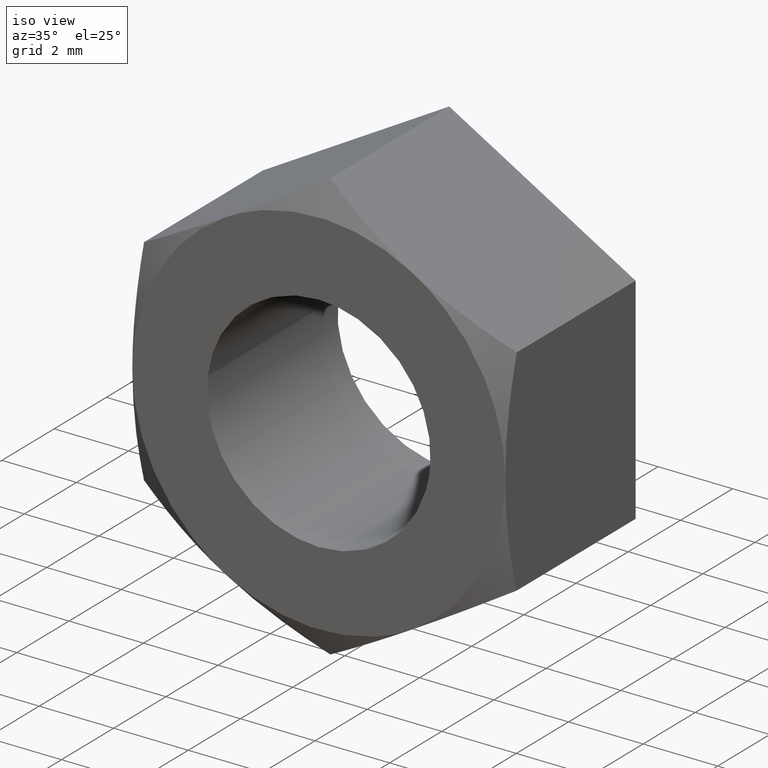
[diagram: clean part render]
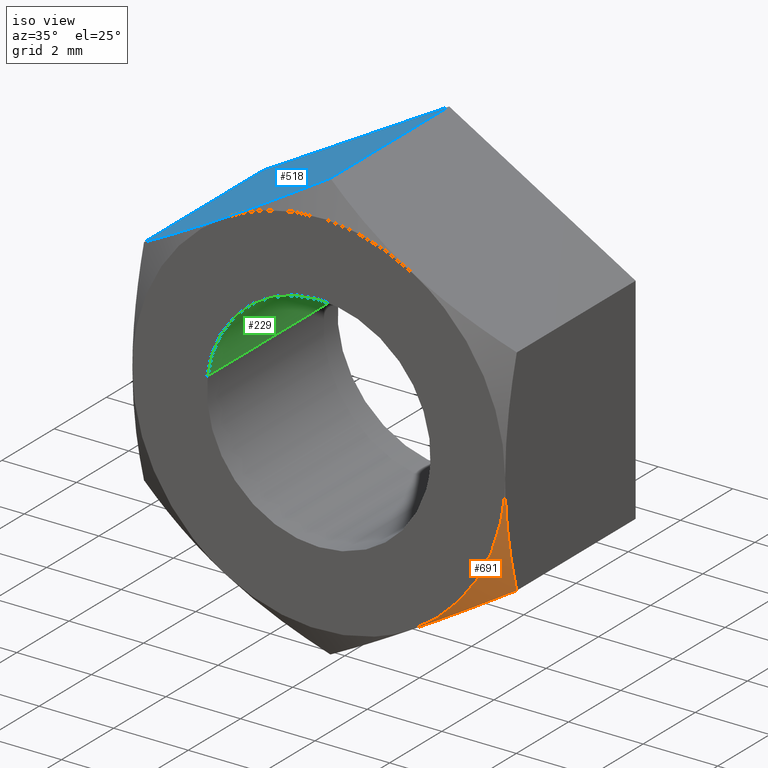
[diagram: same view with three faces highlighted in distinct colors, each labeled with its STEP entity id]
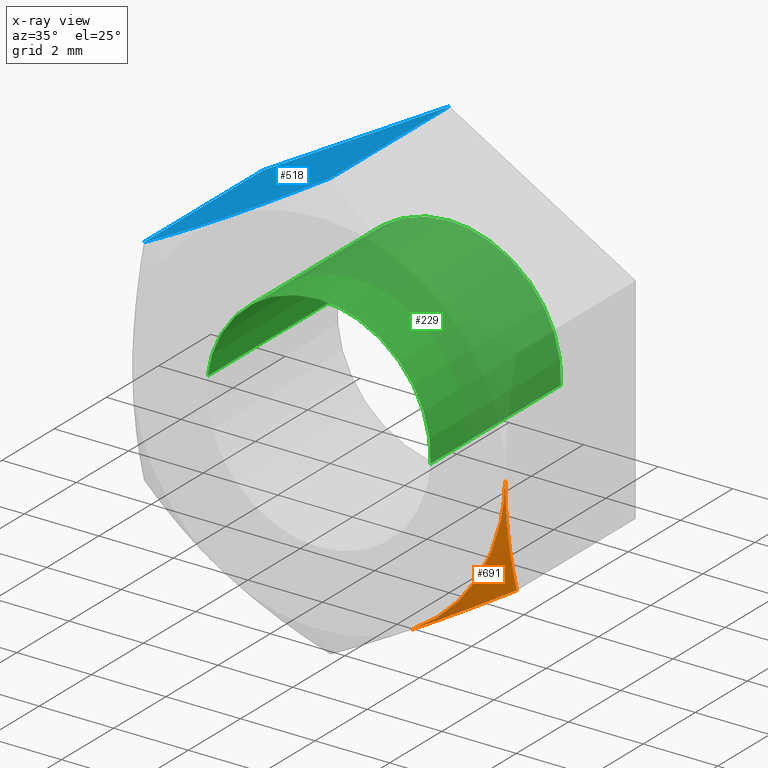
[diagram: x-ray of the same camera — body ghosted, the three highlighted faces saturated]
A machine part, iso view with three faces highlighted in distinct colors.
The next image is the same camera in x-ray (body ghosted, the three faces saturated) — at least one of them is partly hidden behind the body in this view.
Their STEP definitions:

[orange] entity #691 — the highlighted face is a freeform B-spline surface patch.
#342=CARTESIAN_POINT('',(5.000003372813290,-4.553409602993680,-2.886755639193465));
#343=VERTEX_POINT('',#342);
#344=CARTESIAN_POINT('',(2.500000000000000,-5.0,-4.330127018922216));
#345=VERTEX_POINT('',#344);
#346=CARTESIAN_POINT('',(5.000003372813290,-4.553409602993680,-2.886755639193465));
#347=CARTESIAN_POINT('',(4.591800351519336,-4.689478700047564,-3.122430723834567));
#348=CARTESIAN_POINT('',(4.180620990038048,-4.801624573892675,-3.359824199841751));
#349=CARTESIAN_POINT('',(3.557419910390354,-4.918143962773445,-3.719627953597012));
#350=CARTESIAN_POINT('',(3.348611639876511,-4.948346523087345,-3.840182945875693));
#351=CARTESIAN_POINT('',(2.928563096943392,-4.989203702026397,-4.082697047843556));
#352=CARTESIAN_POINT('',(2.717320722964078,-4.999841428735054,-4.204657370869383));
#353=CARTESIAN_POINT('',(2.503183050407779,-4.999999419531586,-4.328289291672485));
#354=CARTESIAN_POINT('',(2.501591583864261,-5.000000004340188,-4.329208121429816));
#355=CARTESIAN_POINT('',(2.500000000000000,-5.0,-4.330127018922216));
#356=B_SPLINE_CURVE_WITH_KNOTS('',3,(#346,#347,#348,#349,#350,#351,#352,#353,#354,#355),.UNSPECIFIED.,.F.,.U.,(4,2,2,2,4),(0.0,0.250000000000000,0.374999999999999,0.499999999999999,0.500935881726906),.UNSPECIFIED.);
#357=EDGE_CURVE('',#343,#345,#356,.T.);
#389=CARTESIAN_POINT('',(5.0,-5.0,-8.673617E-016));
#390=VERTEX_POINT('',#389);
#406=CARTESIAN_POINT('',(5.0,-5.0,-8.673617E-016));
#407=CARTESIAN_POINT('',(5.000000278066759,-4.999999381140824,-0.243690208678995));
#408=CARTESIAN_POINT('',(5.000000557069144,-4.989662450478551,-0.486601332153735));
#409=CARTESIAN_POINT('',(5.000001117185601,-4.949305695528569,-0.971229237509199));
#410=CARTESIAN_POINT('',(5.000001398300466,-4.919277123627644,-1.212945360050677));
#411=CARTESIAN_POINT('',(5.000001962129272,-4.841554158489500,-1.695046068286999));
#412=CARTESIAN_POINT('',(5.000002244965130,-4.793852497305100,-1.935536373870069));
#413=CARTESIAN_POINT('',(5.000002811501803,-4.683430768834334,-2.414951643881277));
#414=CARTESIAN_POINT('',(5.000003092898107,-4.621197994619315,-2.651932379907174));
#415=CARTESIAN_POINT('',(5.000003372813290,-4.553409602993680,-2.886755639193465));
#416=B_SPLINE_CURVE_WITH_KNOTS('',3,(#406,#407,#408,#409,#410,#411,#412,#413,#414,#415),.UNSPECIFIED.,.F.,.U.,(4,2,2,2,4),(0.0,0.124851816799926,0.249851816799926,0.374851816799926,0.499851816799926),.UNSPECIFIED.);
#417=EDGE_CURVE('',#390,#343,#416,.T.);
#565=CARTESIAN_POINT('',(2.500000000000000,-5.0,-4.330127018922216));
#566=CARTESIAN_POINT('',(4.999998535914707,-5.0,-2.886750500658105));
#567=CARTESIAN_POINT('',(5.0,-5.0,-8.673617E-016));
#575=(BOUNDED_CURVE()B_SPLINE_CURVE(2,(#565,#566,#567),.UNSPECIFIED.,.F.,.U.)CURVE()GEOMETRIC_REPRESENTATION_ITEM()QUASI_UNIFORM_CURVE()RATIONAL_B_SPLINE_CURVE((1.0,0.866025403784438,1.0))REPRESENTATION_ITEM(''));
#576=EDGE_CURVE('',#345,#390,#575,.T.);
#672=CARTESIAN_POINT('',(2.299811141032349,-5.011164759925159,-4.417896097332315));
#673=CARTESIAN_POINT('',(2.675061652942959,-4.541965724070393,-5.138745623849379));
#674=CARTESIAN_POINT('',(5.133666530441489,-5.011164759925159,-2.942684355577432));
#675=CARTESIAN_POINT('',(5.971305308320352,-4.541965724070393,-3.422829786269666));
#676=CARTESIAN_POINT('',(4.974468997754680,-5.011164759925159,0.248184209042729));
#677=CARTESIAN_POINT('',(5.786132183738284,-4.541965724070392,0.288679382681034));
#685=(BOUNDED_SURFACE()B_SPLINE_SURFACE(1,2,((#672,#674,#676),(#673,#675,#677)),.UNSPECIFIED.,.F.,.F.,.U.)B_SPLINE_SURFACE_WITH_KNOTS((2,2),(3,3),(0.0,1.0),(0.0,6.793468064875188),.UNSPECIFIED.)GEOMETRIC_REPRESENTATION_ITEM()RATIONAL_B_SPLINE_SURFACE(((1.0,0.838184844459482,0.991624471965713),(1.0,0.838184844459482,0.991624471965713)))REPRESENTATION_ITEM('')SURFACE());
#686=ORIENTED_EDGE('',*,*,#417,.F.);
#687=ORIENTED_EDGE('',*,*,#576,.F.);
#688=ORIENTED_EDGE('',*,*,#357,.F.);
#689=EDGE_LOOP('',(#686,#687,#688));
#690=FACE_OUTER_BOUND('',#689,.T.);
#691=ADVANCED_FACE('',(#690),#685,.T.);

[blue] entity #518 — the highlighted face is a freeform B-spline surface patch.
#235=CARTESIAN_POINT('',(-4.999997968349340,0.0,2.886752518922210));
#236=VERTEX_POINT('',#235);
#244=CARTESIAN_POINT('',(0.000002031650682,0.0,5.773501518922211));
#245=VERTEX_POINT('',#244);
#246=CARTESIAN_POINT('',(0.000002031650682,0.0,5.773501518922211));
#247=CARTESIAN_POINT('',(-4.999997968349340,0.0,2.886752518922210));
#248=QUASI_UNIFORM_CURVE('',1,(#246,#247),.UNSPECIFIED.,.F.,.U.);
#249=EDGE_CURVE('',#245,#236,#248,.T.);
#434=CARTESIAN_POINT('',(0.000002031652878,-4.553409602993680,5.773507759460920));
#435=VERTEX_POINT('',#434);
#466=CARTESIAN_POINT('',(0.000002031650682,0.0,5.773501518922211));
#467=CARTESIAN_POINT('',(0.000002031652878,-4.553409602993680,5.773507759460920));
#468=QUASI_UNIFORM_CURVE('',1,(#466,#467),.UNSPECIFIED.,.F.,.U.);
#469=EDGE_CURVE('',#245,#435,#468,.T.);
#474=CARTESIAN_POINT('',(-5.249750815301801,-5.249749990309030,2.742557645503334));
#475=CARTESIAN_POINT('',(0.249753683967007,-5.249749990309030,5.917698048565737));
#476=CARTESIAN_POINT('',(-5.249750815301801,0.249750124419481,2.742557645503334));
#477=CARTESIAN_POINT('',(0.249753683967007,0.249750124419481,5.917698048565737));
#478=B_SPLINE_SURFACE_WITH_KNOTS('',1,1,((#474,#476),(#475,#477)),.UNSPECIFIED.,.F.,.F.,.U.,(2,2),(2,2),(0.0,6.350280806124808),(0.0,5.499500114728511),.UNSPECIFIED.);
#479=CARTESIAN_POINT('',(-5.000003372813290,-4.553409602993680,2.886755639193465));
#480=VERTEX_POINT('',#479);
#481=CARTESIAN_POINT('',(-2.500000000000000,-5.0,4.330127018922211));
#482=VERTEX_POINT('',#481);
#483=CARTESIAN_POINT('',(-5.000003372813290,-4.553409602993680,2.886755639193465));
#484=CARTESIAN_POINT('',(-4.591800351519335,-4.689478700047566,3.122430723834567));
#485=CARTESIAN_POINT('',(-4.180620990038047,-4.801624573892677,3.359824199841750));
#486=CARTESIAN_POINT('',(-3.557419910390353,-4.918143962773447,3.719627953597011));
#487=CARTESIAN_POINT('',(-3.348611639876510,-4.948346523087348,3.840182945875693));
#488=CARTESIAN_POINT('',(-2.928563096943389,-4.989203702026398,4.082697047843555));
#489=CARTESIAN_POINT('',(-2.717320722964074,-4.999841428735058,4.204657370869381));
#490=CARTESIAN_POINT('',(-2.503183050407777,-4.999999419531587,4.328289291672482));
#491=CARTESIAN_POINT('',(-2.501591583864260,-5.000000004340189,4.329208121429812));
#492=CARTESIAN_POINT('',(-2.500000000000000,-5.0,4.330127018922211));
#493=B_SPLINE_CURVE_WITH_KNOTS('',3,(#483,#484,#485,#486,#487,#488,#489,#490,#491,#492),.UNSPECIFIED.,.F.,.U.,(4,2,2,2,4),(0.0,0.250000000000000,0.374999999999999,0.499999999999999,0.500935881726905),.UNSPECIFIED.);
#494=EDGE_CURVE('',#480,#482,#493,.T.);
#495=ORIENTED_EDGE('',*,*,#494,.T.);
#496=CARTESIAN_POINT('',(-2.500000000000000,-5.0,4.330127018922211));
#497=CARTESIAN_POINT('',(-2.395302691109972,-4.999999180456554,4.390574197682310));
#498=CARTESIAN_POINT('',(-2.290097704329301,-4.997448956096083,4.451314485701281));
#499=CARTESIAN_POINT('',(-2.079036388718639,-4.987251169289277,4.573171116276702));
#500=CARTESIAN_POINT('',(-1.973079080158115,-4.979538576180673,4.634345759674647));
#501=CARTESIAN_POINT('',(-1.656267459934277,-4.949009445233118,4.817257522120468));
#502=CARTESIAN_POINT('',(-1.446475932618204,-4.918784275521857,4.938381042232552));
#503=CARTESIAN_POINT('',(-0.820836445799986,-4.802071551126015,5.299595144014633));
#504=CARTESIAN_POINT('',(-0.408709027332948,-4.689648237257094,5.537537669942529));
#505=CARTESIAN_POINT('',(0.000002031652878,-4.553409602993680,5.773507759460920));
#506=B_SPLINE_CURVE_WITH_KNOTS('',3,(#496,#497,#498,#499,#500,#501,#502,#503,#504,#505),.UNSPECIFIED.,.F.,.U.,(4,2,2,2,4),(0.500935881726905,0.562499999999999,0.625000000000000,0.750000000000000,1.0),.UNSPECIFIED.);
#507=EDGE_CURVE('',#482,#435,#506,.T.);
#508=ORIENTED_EDGE('',*,*,#507,.T.);
#509=ORIENTED_EDGE('',*,*,#469,.F.);
#510=ORIENTED_EDGE('',*,*,#249,.T.);
#511=CARTESIAN_POINT('',(-4.999997968349340,0.0,2.886752518922210));
#512=CARTESIAN_POINT('',(-5.000003372813290,-4.553409602993680,2.886755639193465));
#513=QUASI_UNIFORM_CURVE('',1,(#511,#512),.UNSPECIFIED.,.F.,.U.);
#514=EDGE_CURVE('',#236,#480,#513,.T.);
#515=ORIENTED_EDGE('',*,*,#514,.T.);
#516=EDGE_LOOP('',(#495,#508,#509,#510,#515));
#517=FACE_OUTER_BOUND('',#516,.T.);
#518=ADVANCED_FACE('',(#517),#478,.T.);

[green] entity #229 — the highlighted face is a freeform B-spline surface patch.
#66=CARTESIAN_POINT('',(-2.979029048847217,-3.904214E-015,0.354098751916197));
#67=VERTEX_POINT('',#66);
#85=CARTESIAN_POINT('',(-2.979029043188417,-5.0,0.354098799524145));
#86=VERTEX_POINT('',#85);
#87=CARTESIAN_POINT('',(-2.979029048847217,-3.904214E-015,0.354098751916197));
#88=CARTESIAN_POINT('',(-2.979029043188417,-5.0,0.354098799524145));
#89=QUASI_UNIFORM_CURVE('',1,(#87,#88),.UNSPECIFIED.,.F.,.U.);
#90=EDGE_CURVE('',#67,#86,#89,.T.);
#109=CARTESIAN_POINT('',(2.994404452998527,-5.0,-0.183144674674689));
#110=VERTEX_POINT('',#109);
#124=CARTESIAN_POINT('',(2.994404453701684,-1.568190E-015,-0.183144663178055));
#125=VERTEX_POINT('',#124);
#126=CARTESIAN_POINT('',(2.994404453701684,-1.568190E-015,-0.183144663178055));
#127=CARTESIAN_POINT('',(2.994404452998527,-5.0,-0.183144674674689));
#128=QUASI_UNIFORM_CURVE('',1,(#126,#127),.UNSPECIFIED.,.F.,.U.);
#129=EDGE_CURVE('',#125,#110,#128,.T.);
#147=CARTESIAN_POINT('',(2.994404395265600,0.125000000000000,-0.183145618604571));
#148=CARTESIAN_POINT('',(3.177550013870171,0.125000000000000,2.811258776661029));
#149=CARTESIAN_POINT('',(0.183145618604571,0.125000000000000,2.994404395265600));
#150=CARTESIAN_POINT('',(-2.644630472518504,0.125000000000000,3.167358590197582));
#151=CARTESIAN_POINT('',(-2.979028579091000,0.125000000000000,0.354102703970275));
#152=CARTESIAN_POINT('',(2.994404395265600,-5.128125000000001,-0.183145618604571));
#153=CARTESIAN_POINT('',(3.177550013870171,-5.128125000000001,2.811258776661029));
#154=CARTESIAN_POINT('',(0.183145618604571,-5.128125000000001,2.994404395265600));
#155=CARTESIAN_POINT('',(-2.644630472518504,-5.128125000000000,3.167358590197582));
#156=CARTESIAN_POINT('',(-2.979028579091000,-5.128125000000002,0.354102703970275));
#164=(BOUNDED_SURFACE()B_SPLINE_SURFACE(2,1,((#147,#152),(#148,#153),(#149,#154),(#150,#155),(#151,#156)),.UNSPECIFIED.,.F.,.F.,.U.)B_SPLINE_SURFACE_WITH_KNOTS((3,2,3),(2,2),(0.0,4.970562748477139,9.742302987015194),(0.0,5.253125000000002),.UNSPECIFIED.)GEOMETRIC_REPRESENTATION_ITEM()RATIONAL_B_SPLINE_SURFACE(((1.0,1.0),(0.707106781186548,0.707106781186548),(1.0,1.0),(0.718822509939086,0.718822509939086),(0.977505800795127,0.977505800795127)))REPRESENTATION_ITEM('')SURFACE());
#165=CARTESIAN_POINT('',(0.0,0.0,3.0));
#166=VERTEX_POINT('',#165);
#167=CARTESIAN_POINT('',(0.0,0.0,3.0));
#168=CARTESIAN_POINT('',(-2.664527137563535,0.0,3.0));
#169=CARTESIAN_POINT('',(-2.979029048847217,-3.904214E-015,0.354098751916197));
#177=(BOUNDED_CURVE()B_SPLINE_CURVE(2,(#167,#168,#169),.UNSPECIFIED.,.F.,.U.)B_SPLINE_CURVE_WITH_KNOTS((3,3),(0.0,0.229562697719614),.UNSPECIFIED.)CURVE()GEOMETRIC_REPRESENTATION_ITEM()RATIONAL_B_SPLINE_CURVE((1.0,0.731050570181611,0.956027193637312))REPRESENTATION_ITEM(''));
#178=EDGE_CURVE('',#166,#67,#177,.T.);
#179=ORIENTED_EDGE('',*,*,#178,.F.);
#180=CARTESIAN_POINT('',(2.994404453701684,-1.568190E-015,-0.183144663178055));
#181=CARTESIAN_POINT('',(3.0,0.0,-0.091657331790355));
#182=CARTESIAN_POINT('',(3.0,0.0,0.0));
#183=CARTESIAN_POINT('',(3.0,0.0,3.0));
#184=CARTESIAN_POINT('',(0.0,0.0,3.0));
#192=(BOUNDED_CURVE()B_SPLINE_CURVE(2,(#180,#181,#182,#183,#184),.UNSPECIFIED.,.F.,.U.)B_SPLINE_CURVE_WITH_KNOTS((3,2,3),(0.739333072351208,0.750000000000000,1.0),.UNSPECIFIED.)CURVE()GEOMETRIC_REPRESENTATION_ITEM()RATIONAL_B_SPLINE_CURVE((0.976072277658375,0.987502916904380,1.0,0.707106781186548,1.0))REPRESENTATION_ITEM(''));
#193=EDGE_CURVE('',#125,#166,#192,.T.);
#194=ORIENTED_EDGE('',*,*,#193,.F.);
#195=ORIENTED_EDGE('',*,*,#129,.T.);
#196=CARTESIAN_POINT('',(0.0,-5.0,3.0));
#197=VERTEX_POINT('',#196);
#198=CARTESIAN_POINT('',(2.994404452998527,-5.0,-0.183144674674689));
#199=CARTESIAN_POINT('',(3.000000000000000,-5.0,-0.091657343319225));
#200=CARTESIAN_POINT('',(3.0,-5.0,0.0));
#201=CARTESIAN_POINT('',(3.0,-5.000000000000001,3.0));
#202=CARTESIAN_POINT('',(0.0,-5.0,3.0));
#210=(BOUNDED_CURVE()B_SPLINE_CURVE(2,(#198,#199,#200,#201,#202),.UNSPECIFIED.,.F.,.U.)B_SPLINE_CURVE_WITH_KNOTS((3,2,3),(0.739333071026264,0.750000000000000,1.0),.UNSPECIFIED.)CURVE()GEOMETRIC_REPRESENTATION_ITEM()RATIONAL_B_SPLINE_CURVE((0.976072274818767,0.987502915352112,1.0,0.707106781186548,1.0))REPRESENTATION_ITEM(''));
#211=EDGE_CURVE('',#110,#197,#210,.T.);
#212=ORIENTED_EDGE('',*,*,#211,.T.);
#213=CARTESIAN_POINT('',(0.0,-5.0,3.0));
#214=CARTESIAN_POINT('',(-2.664527094681900,-5.0,3.000000000000000));
#215=CARTESIAN_POINT('',(-2.979029043188417,-5.0,0.354098799524145));
#223=(BOUNDED_CURVE()B_SPLINE_CURVE(2,(#213,#214,#215),.UNSPECIFIED.,.F.,.U.)B_SPLINE_CURVE_WITH_KNOTS((3,3),(0.0,0.229562695018767),.UNSPECIFIED.)CURVE()GEOMETRIC_REPRESENTATION_ITEM()RATIONAL_B_SPLINE_CURVE((1.0,0.731050573345850,0.956027188343531))REPRESENTATION_ITEM(''));
#224=EDGE_CURVE('',#197,#86,#223,.T.);
#225=ORIENTED_EDGE('',*,*,#224,.T.);
#226=ORIENTED_EDGE('',*,*,#90,.F.);
#227=EDGE_LOOP('',(#179,#194,#195,#212,#225,#226));
#228=FACE_OUTER_BOUND('',#227,.T.);
#229=ADVANCED_FACE('',(#228),#164,.F.);